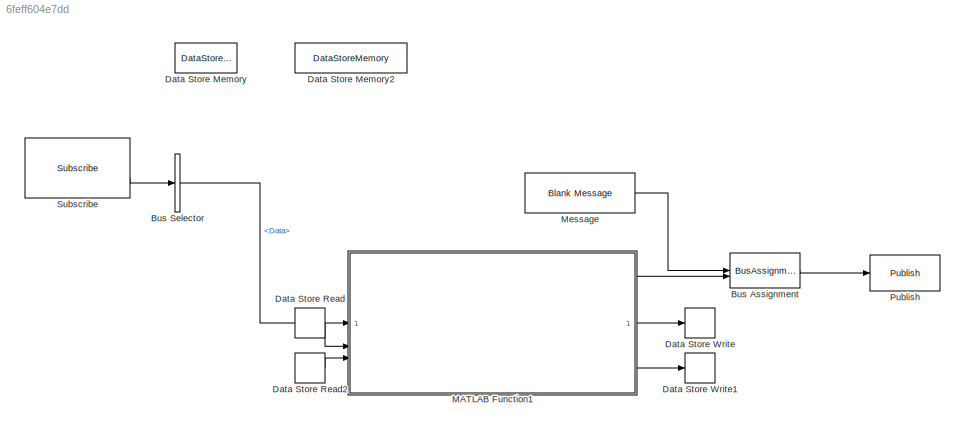
MODEL slx_6feff604e7dd
KIND model
CONFIG AbsTol = auto
CONFIG EnableMultiTasking = off
CONFIG FixedStep = auto
CONFIG MaxStep = auto
CONFIG MinStep = auto
CONFIG RelTol = 1e-3
CONFIG SampleTimeConstraint = Unconstrained
CONFIG SolverName = FixedStepAuto
CONFIG StartTime = 0.0
CONFIG StopTime = 100.0
BLOCK [BusAssignment] Bus Assignment
  AssignedSignals = Data
BLOCK [BusSelector] Bus Selector
  OutputSignals = Data
BLOCK [DataStoreMemory] Data Store Memory
  DataStoreName = sim_time
  Dimensions = 1
  OutDataTypeStr = double
  ShowAdditionalParam = off
  WriteAfterWriteMsg = warning
BLOCK [DataStoreMemory] Data Store Memory2
  DataStoreName = stop_light_distance
  InitialValue = 500
  OutDataTypeStr = double
  ShowAdditionalParam = off
  WriteAfterWriteMsg = warning
BLOCK [DataStoreRead] Data Store Read
  DataStoreName = sim_time
  IndexOptions = Index vector (dialog)
  Indices = 1
  OutputSizes = 1
BLOCK [DataStoreRead] Data Store Read2
  DataStoreElements = stop_light_distance
  DataStoreName = stop_light_distance
  IndexOptions = Index vector (dialog)
  Indices = 1
  OutputSizes = 1
BLOCK [DataStoreWrite] Data Store Write
  DataStoreName = sim_time
  IndexOptions = Index vector (dialog)
  Indices = 1
  OutputSizes = 1
BLOCK [DataStoreWrite] Data Store Write1
  DataStoreElements = stop_light_distance
  DataStoreName = stop_light_distance
  IndexOptions = Index vector (dialog)
  Indices = 1
  OutputSizes = 1
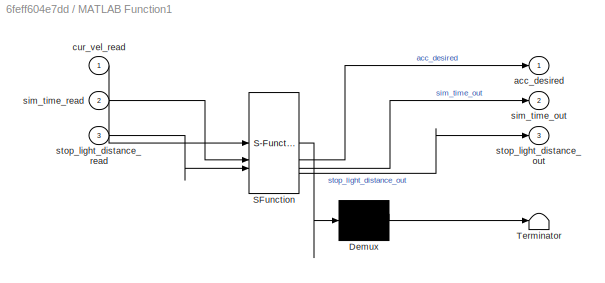
BLOCK [SubSystem] MATLAB Function1
  ErrorFcn = Stateflow.Translate.translate
  PermitHierarchicalResolution = ExplicitOnly
  SFBlockType = MATLAB Function
  TreatAsAtomicUnit = on
BLOCK [Demux] MATLAB Function1/ Demux 
  Outputs = 1
BLOCK [S-Function] MATLAB Function1/ SFunction 
  EnableBusSupport = on
  FunctionName = sf_sfun
  PortCounts = [3 4]
  SFcnIsStateOwnerBlock = off
  SFunctionDeploymentMode = off
  Tag = Stateflow S-Function 1
BLOCK [Terminator] MATLAB Function1/ Terminator 
BLOCK [Outport] MATLAB Function1/acc_desired
BLOCK [Inport] MATLAB Function1/cur_vel_read
BLOCK [Outport] MATLAB Function1/sim_time_out
  Port = 2
BLOCK [Inport] MATLAB Function1/sim_time_read
  Port = 2
BLOCK [Outport] MATLAB Function1/stop_light_distance_out
  Port = 3
BLOCK [Inport] MATLAB Function1/stop_light_distance_read
  Port = 3
BLOCK [Reference] Message  REF=robotlib/Blank Message
  SourceBlock = robotlib/Blank Message
  SourceType = ROS Blank Message
BLOCK [Reference] Publish  REF=robotlib/Publish
  SourceBlock = robotlib/Publish
  SourceType = ROS Publish
BLOCK [Reference] Subscribe  REF=robotlib/Subscribe
  SourceBlock = robotlib/Subscribe
  SourceType = ROS Subscribe
LINE Bus Assignment:1 -> Publish:1
LINE Bus Selector:1 -> MATLAB Function1:1
LINE Data Store Read2:1 -> MATLAB Function1:3
LINE Data Store Read:1 -> MATLAB Function1:2
LINE MATLAB Function1:1 -> Bus Assignment:2
LINE MATLAB Function1:2 -> Data Store Write:1
LINE MATLAB Function1:3 -> Data Store Write1:1
LINE Message:1 -> Bus Assignment:1
LINE Subscribe:2 -> Bus Selector:1
CHART MATLAB Function1 states=1 transitions=1
  STATE_LABEL 'eML_blk_kernel()'
  STATE_LABEL 'SCRIPT:\nfunction [acc_desired, sim_time_out, stop_light_distance_out] = constant_time_gap(cur_vel_read, sim_time_read, stop_light_distance_read)\n    % Read the current simulation time and stop light distance from input\n    time_step = 1;\n    sim_time = sim_time_read;\n    stop_light_distance = stop_light_distance_read;\n    vel_ego = cur_vel_read;\n\n    % Traffic Light Timing\n    time_to_green = 40 -...<+1342ch>'
CHART  states=0 transitions=0
